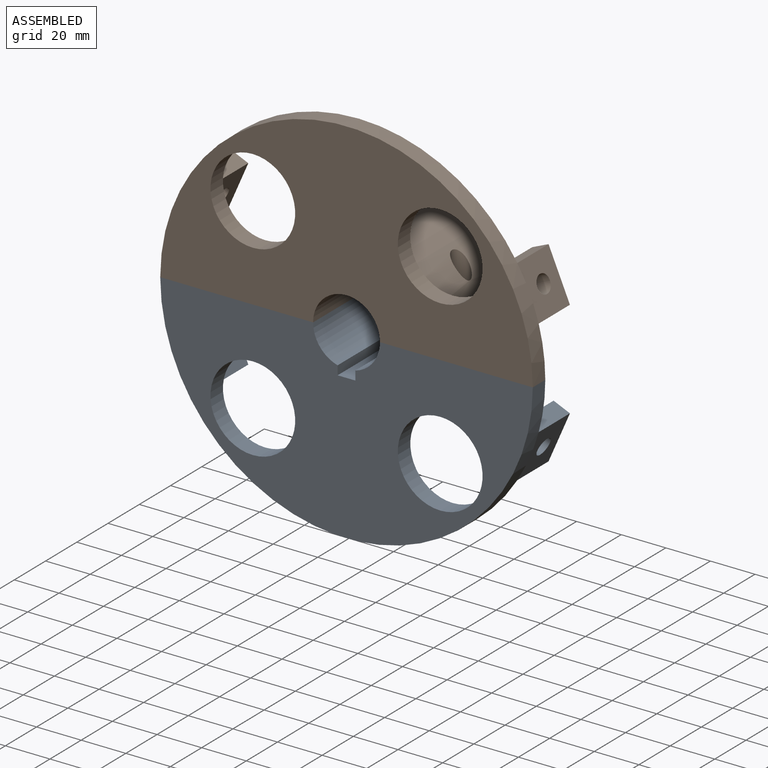
[diagram: assembled view]
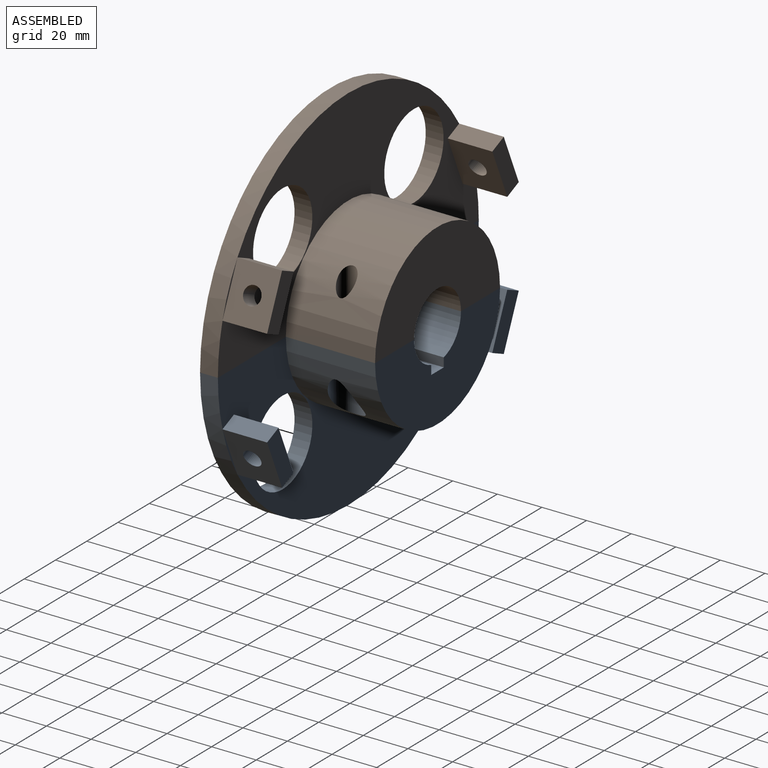
[diagram: assembled view, second angle]
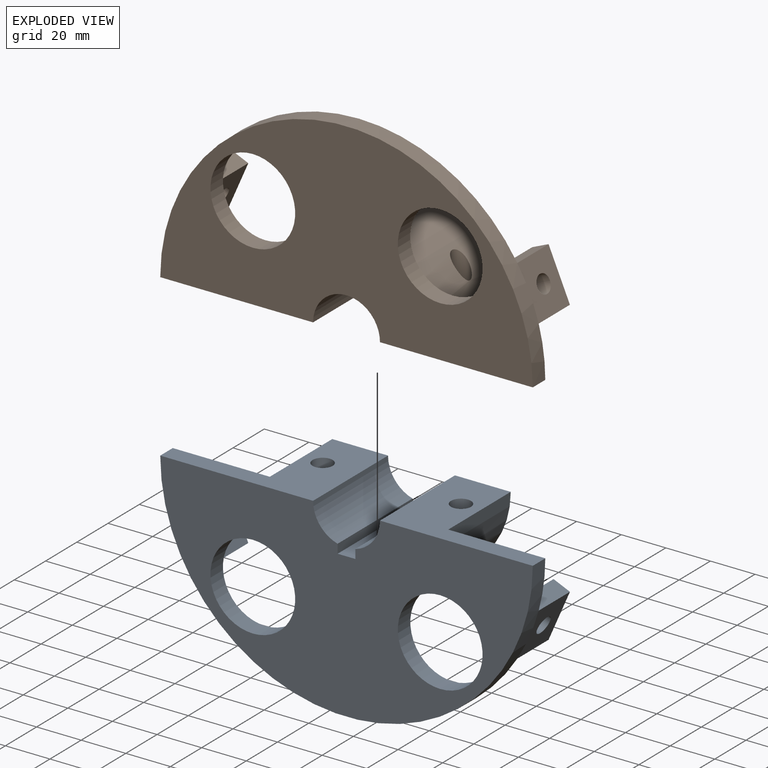
[diagram: exploded view]
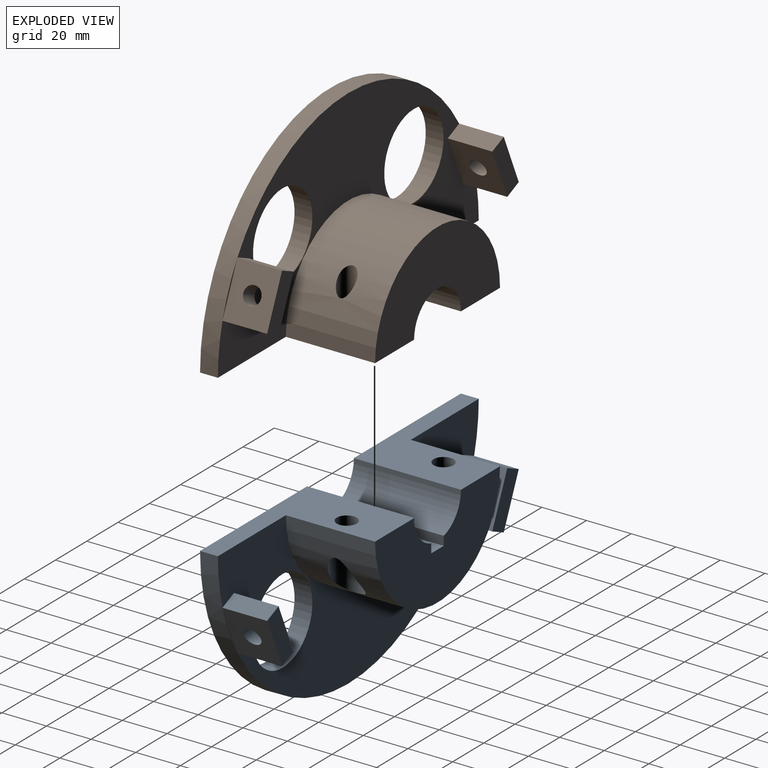
[diagram: exploded view, second angle]
ASSEMBLY  parts=2 mates=2
PART A: 34 faces, bbox 167x48x83.5 mm
  f0: cylinder r=40mm len=80mm, axis (0,-1,0), area 4504.9mm2, adj f2,f5,f7,f12,f30,f32
  f1: cylinder r=15mm len=48mm, axis (0,1,0), area 936.6mm2, adj f7,f11,f12,f24
  f2: plane 167x83.5mm, normal (0,1,0), area 5758.7mm2, adj f0,f5,f6,f7,f8,f9,f13,f14
  f3: plane 22x9.59mm, normal (0,1,0), area 13.9mm2, adj f6,f18
  f4: plane 22x9.59mm, normal (0,1,0), area 13.9mm2, adj f6,f15
  f5: plane 68.5x48mm, normal (0,0,1), area 1484.4mm2, adj f0,f2,f6,f10,f11,f12,f28
  f6: cylinder r=83.5mm len=167mm, axis (0,1,0), area 2098.6mm2, adj f2,f3,f4,f5,f7,f11
  f7: plane 68.5x48mm, normal (0,0,1), area 1484.4mm2, adj f0,f1,f2,f6,f11,f12,f29
  f8: cylinder r=19mm len=38mm, axis (0,1,0), area 955mm2, adj f2,f11
  f9: cylinder r=19mm len=38mm, axis (0,1,0), area 955mm2, adj f2,f11
  f10: cylinder r=15mm len=48mm, axis (0,1,0), area 936.6mm2, adj f5,f11,f12,f25
  f11: plane 167x83.5mm, normal (0,-1,0), area 8300.9mm2, adj f1,f5,f6,f7,f8,f9,f10,f23
  f12: plane 80x40mm, normal (0,1,0), area 2130.4mm2, adj f0,f1,f5,f7,f10,f23,f24,f25
  f13: plane 22x20mm, normal (-0.92,0,0.4), area 429.7mm2, adj f2,f14,f16,f17,f26
  f14: plane 20x7.33mm, normal (0.4,0,0.92), area 160mm2, adj f2,f13,f15,f17
  f15: plane 22x20mm, normal (0.92,0,-0.4), area 429.7mm2, adj f4,f14,f16,f17,f26
  f16: plane 20x7.33mm, normal (-0.4,0,-0.92), area 160mm2, adj f2,f13,f15,f17
  f17: plane 25.2x16.92mm, normal (0,1,0), area 192mm2, adj f13,f14,f15,f16
  f18: plane 22x20mm, normal (-0.92,0,-0.4), area 429.7mm2, adj f3,f19,f21,f22,f27
  f19: plane 20x7.33mm, normal (-0.4,0,0.92), area 160mm2, adj f2,f18,f20,f22
  f20: plane 22x20mm, normal (0.92,0,0.4), area 429.7mm2, adj f2,f19,f21,f22,f27
  f21: plane 20x7.33mm, normal (0.4,0,-0.92), area 160mm2, adj f2,f18,f20,f22
  f22: plane 25.2x16.92mm, normal (0,1,0), area 192mm2, adj f18,f19,f20,f21
  f23: plane 48x8mm, normal (0,0,1), area 384mm2, adj f11,f12,f24,f25
  f24: plane 48x4.04mm, normal (-1,0,0), area 194.1mm2, adj f1,f11,f12,f23
  f25: plane 48x4.04mm, normal (1,0,0), area 194.1mm2, adj f10,f11,f12,f23
  f26: cylinder r=4mm len=10.53mm, axis (0.92,0,-0.4), area 201.1mm2, adj f13,f15
  f27: cylinder r=4mm len=10.53mm, axis (-0.92,0,-0.4), area 201.1mm2, adj f18,f20
  f28: cylinder r=4.5mm len=9mm, axis (0,0,1), area 169.6mm2, adj f5,f33
  f29: cylinder r=4.5mm len=9mm, axis (0,0,1), area 169.6mm2, adj f7,f31
  f30: cylinder r=7mm len=26mm, axis (0,0,1), area 785.3mm2, adj f0,f31
  f31: plane 14x14mm, normal (0,0,-1), area 90.3mm2, adj f29,f30
  f32: cylinder r=7mm len=26mm, axis (0,0,1), area 785.6mm2, adj f0,f33
  f33: plane 14x14mm, normal (0,0,-1), area 90.3mm2, adj f28,f32
PART B: 26 faces, bbox 167x48x83.5 mm
  f0: cylinder r=40mm len=80mm, axis (0,1,0), area 4864.2mm2, adj f1,f4,f6,f11,f24,f25
  f1: plane 167x83.5mm, normal (0,-1,0), area 5758.7mm2, adj f0,f4,f5,f6,f7,f9,f12,f14
  f2: plane 22x9.59mm, normal (0,-1,0), area 13.9mm2, adj f5,f17
  f3: plane 22x9.59mm, normal (0,-1,0), area 13.9mm2, adj f5,f13
  f4: plane 68.5x48mm, normal (0,0,1), area 1497.7mm2, adj f0,f1,f5,f8,f10,f11,f25
  f5: cylinder r=83.5mm len=167mm, axis (0,1,0), area 2098.6mm2, adj f1,f2,f3,f4,f6,f10
  f6: plane 68.5x48mm, normal (0,0,1), area 1497.7mm2, adj f0,f1,f5,f8,f10,f11,f24
  f7: cylinder r=19mm len=38mm, axis (0,1,0), area 955mm2, adj f1,f10
  f8: cylinder r=15mm len=48mm, axis (0,1,0), area 2261.9mm2, adj f4,f6,f10,f11
  f9: cylinder r=19mm len=38mm, axis (0,1,0), area 955mm2, adj f1,f10
  f10: plane 167x83.5mm, normal (0,1,0), area 8330.3mm2, adj f4,f5,f6,f7,f8,f9
  f11: plane 80x40mm, normal (0,-1,0), area 2159.8mm2, adj f0,f4,f6,f8
  f12: plane 20x7.33mm, normal (-0.4,0,0.92), area 160mm2, adj f1,f13,f15,f16
  f13: plane 22x20mm, normal (-0.92,0,-0.4), area 429.7mm2, adj f3,f12,f14,f16,f22
  f14: plane 20x7.33mm, normal (0.4,0,-0.92), area 160mm2, adj f1,f13,f15,f16
  f15: plane 22x20mm, normal (0.92,0,0.4), area 429.7mm2, adj f1,f12,f14,f16,f22
  f16: plane 25.2x16.92mm, normal (0,-1,0), area 192mm2, adj f12,f13,f14,f15
  f17: plane 22x20mm, normal (0.92,0,-0.4), area 429.7mm2, adj f2,f18,f20,f21,f23
  f18: plane 20x7.33mm, normal (0.4,0,0.92), area 160mm2, adj f1,f17,f19,f21
  f19: plane 22x20mm, normal (-0.92,0,0.4), area 429.7mm2, adj f1,f18,f20,f21,f23
  f20: plane 20x7.33mm, normal (-0.4,0,-0.92), area 160mm2, adj f1,f17,f19,f21
  f21: plane 25.2x16.92mm, normal (0,-1,0), area 192mm2, adj f17,f18,f19,f20
  f22: cylinder r=4mm len=10.53mm, axis (-0.92,0,-0.4), area 201.1mm2, adj f13,f15
  f23: cylinder r=4mm len=10.53mm, axis (0.92,0,-0.4), area 201.1mm2, adj f17,f19
  f24: cylinder r=4mm len=29.51mm, axis (0,0,1), area 624.9mm2, adj f0,f6
  f25: cylinder r=4mm len=29.51mm, axis (0,0,1), area 624.9mm2, adj f0,f4
PLACE A t=(-7.36,-45.87,3.32)mm fixed
PLACE B rot(axis=(1,0,0),180deg) t=(-7.36,-53.87,3.32)mm
MATE slider B.f24 <-> A.f29  axis (0,0,-1) through (23.64,-24.87,3.32)mm
MATE planar A.f5 <-> B.f4  axis (0,0,1) through (-22.36,-29.87,3.32)mm
